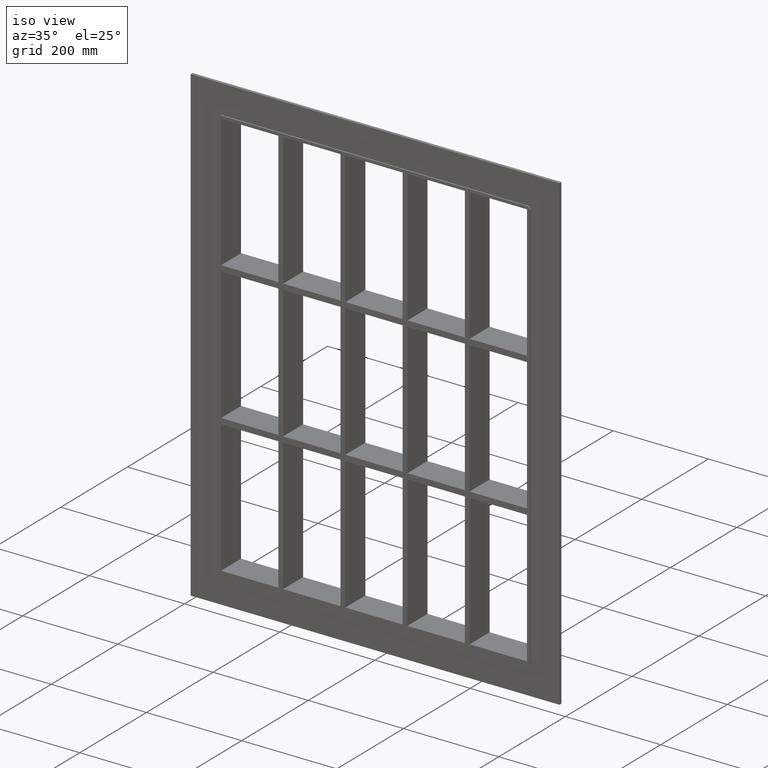
[diagram: clean part render]
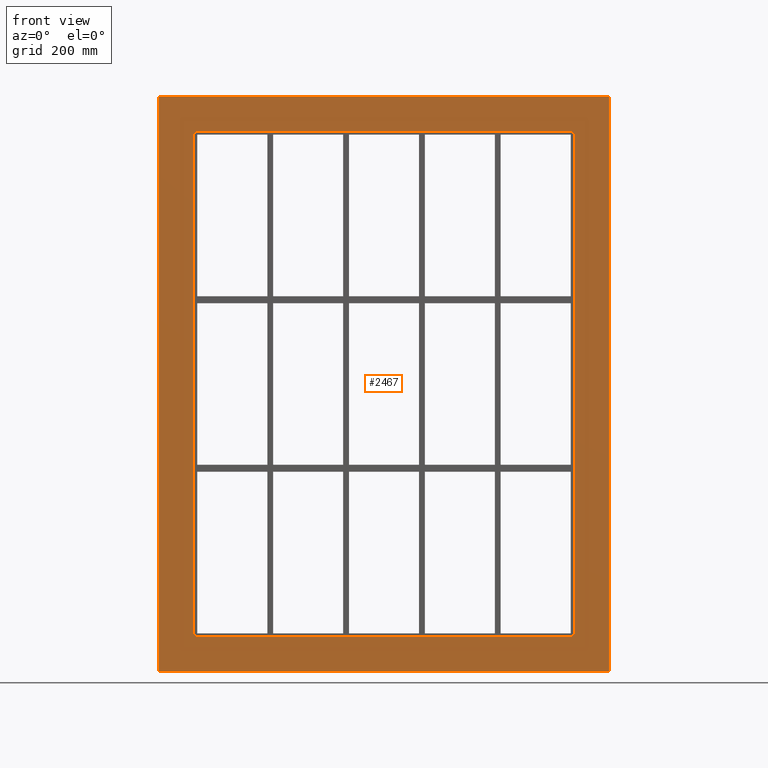
[diagram: tour spotlight — one face highlighted and labeled with its STEP entity id]
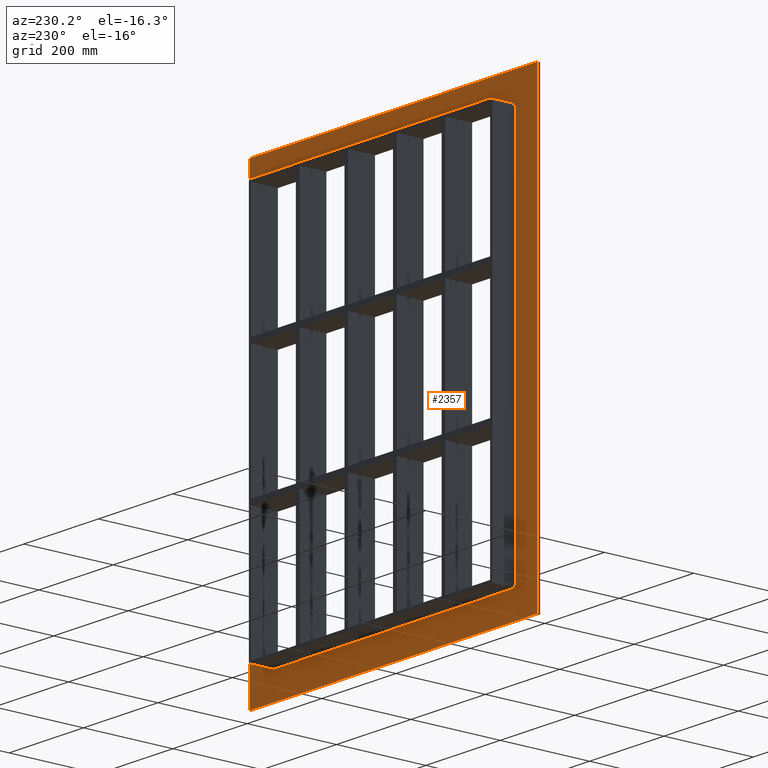
[diagram: tour spotlight — one face highlighted and labeled with its STEP entity id]
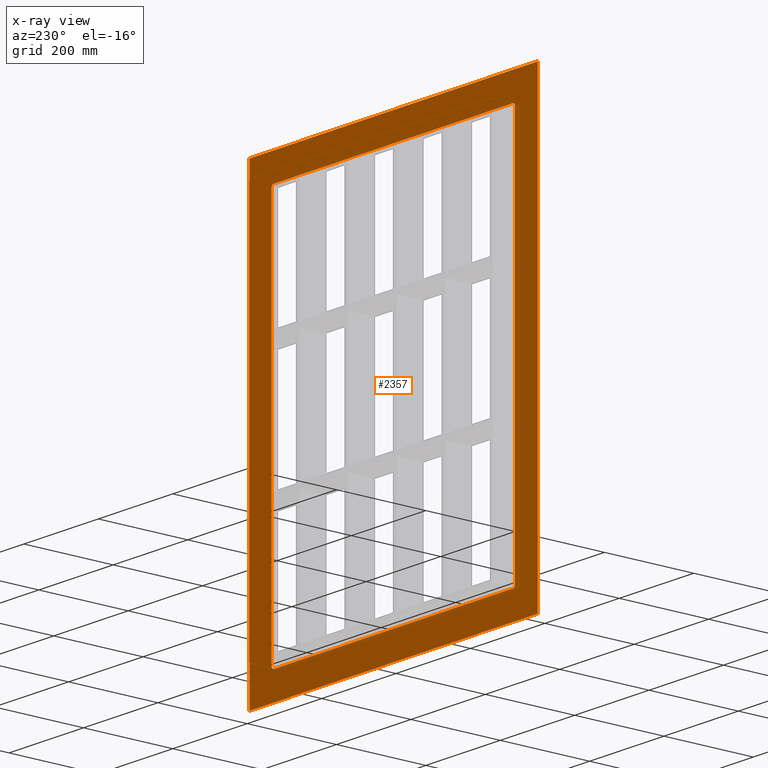
[diagram: x-ray of the same camera — body ghosted, this tour face saturated]
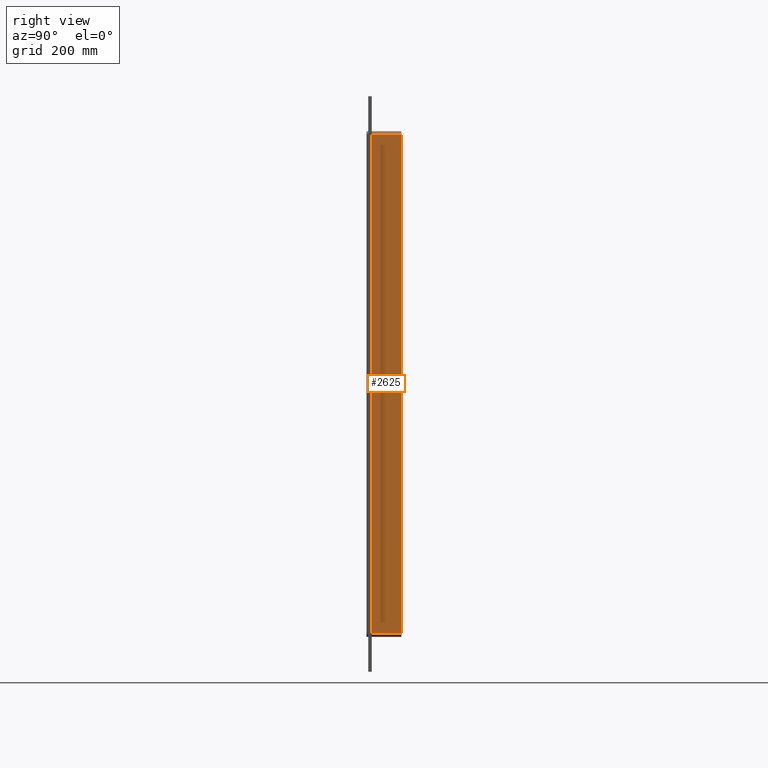
[diagram: tour spotlight — one face highlighted and labeled with its STEP entity id]
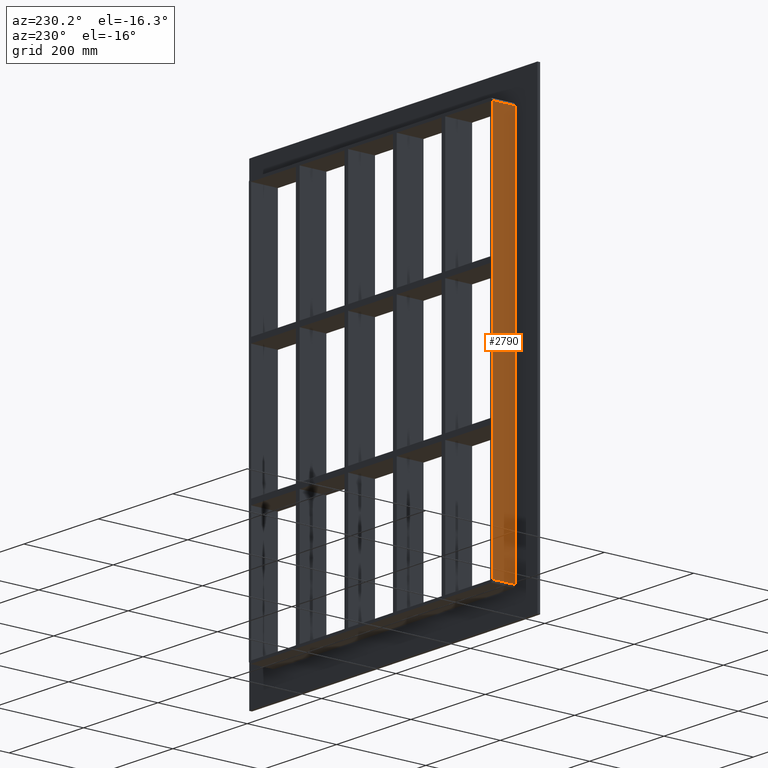
[diagram: tour spotlight — one face highlighted and labeled with its STEP entity id]
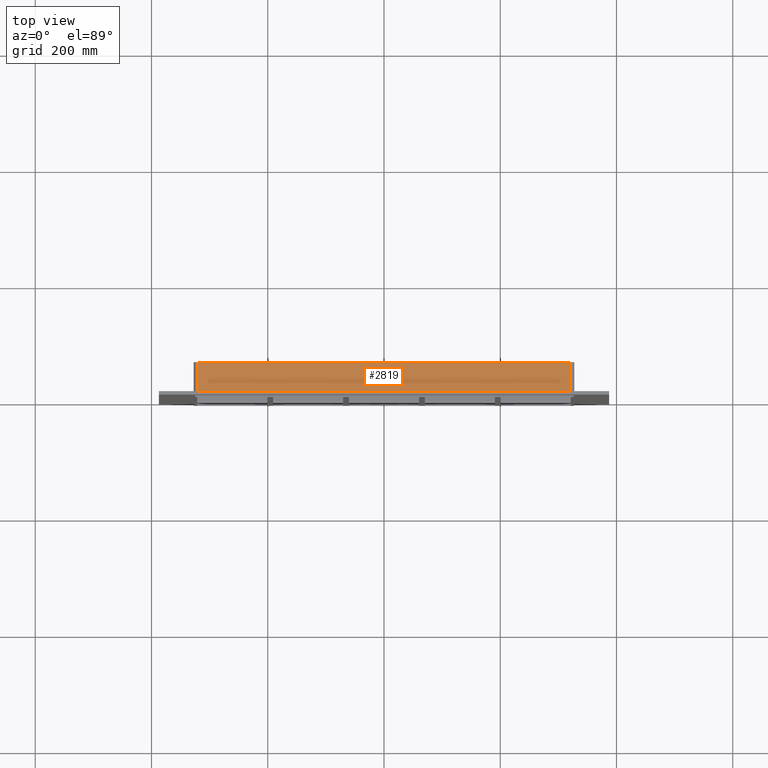
[diagram: tour spotlight — one face highlighted and labeled with its STEP entity id]
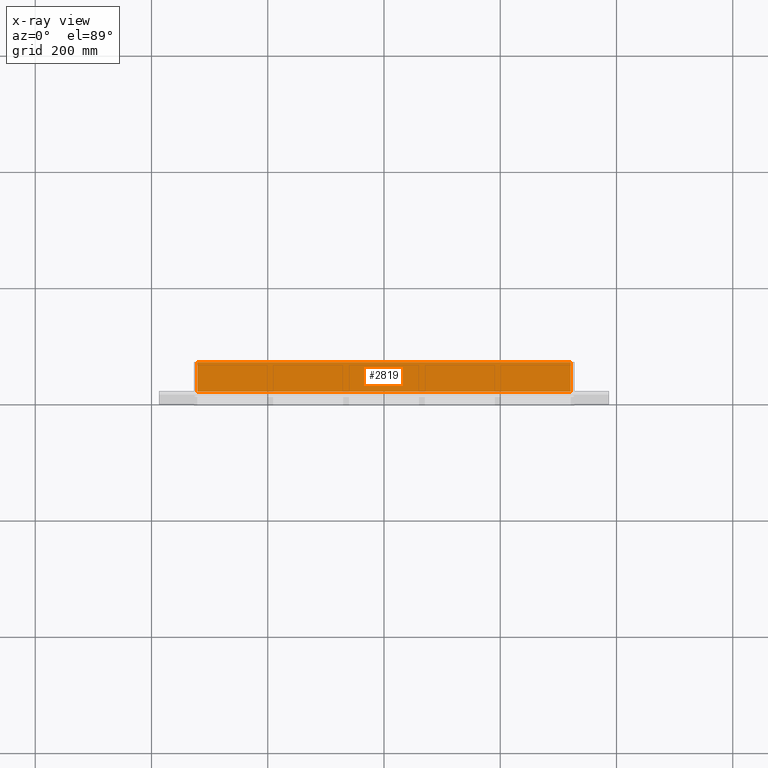
[diagram: x-ray of the same camera — body ghosted, this tour face saturated]
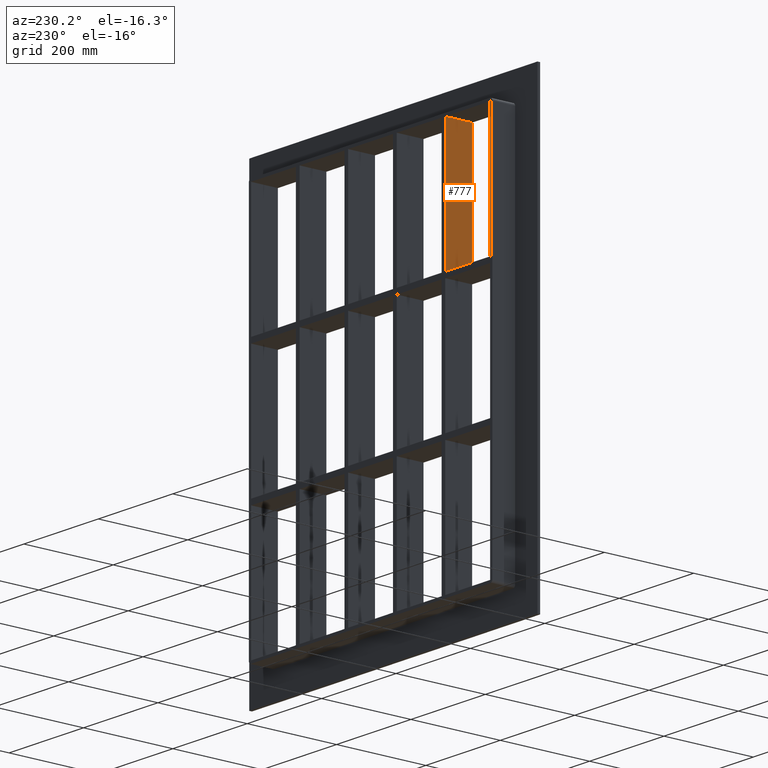
[diagram: tour spotlight — one face highlighted and labeled with its STEP entity id]
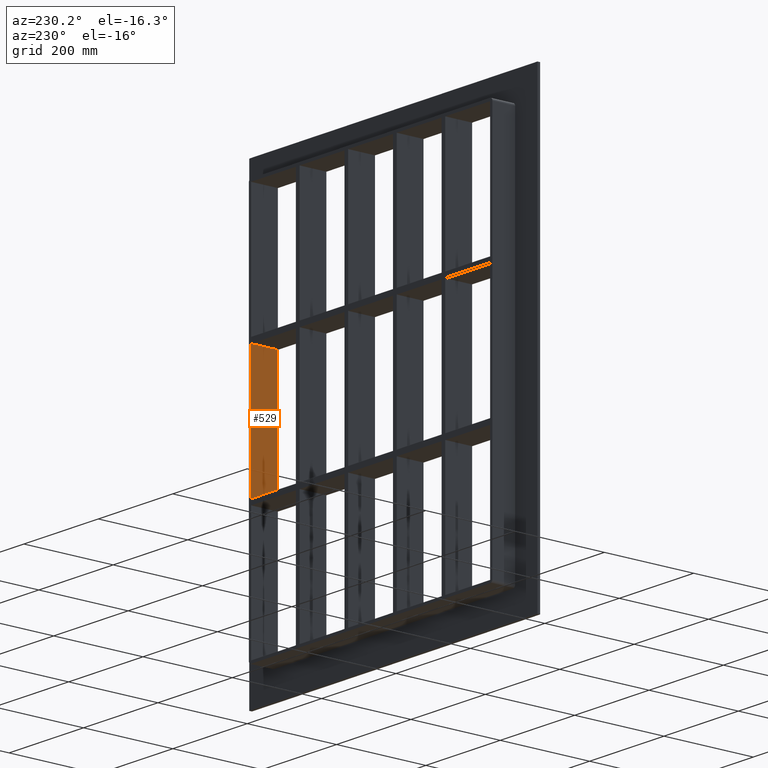
[diagram: tour spotlight — one face highlighted and labeled with its STEP entity id]
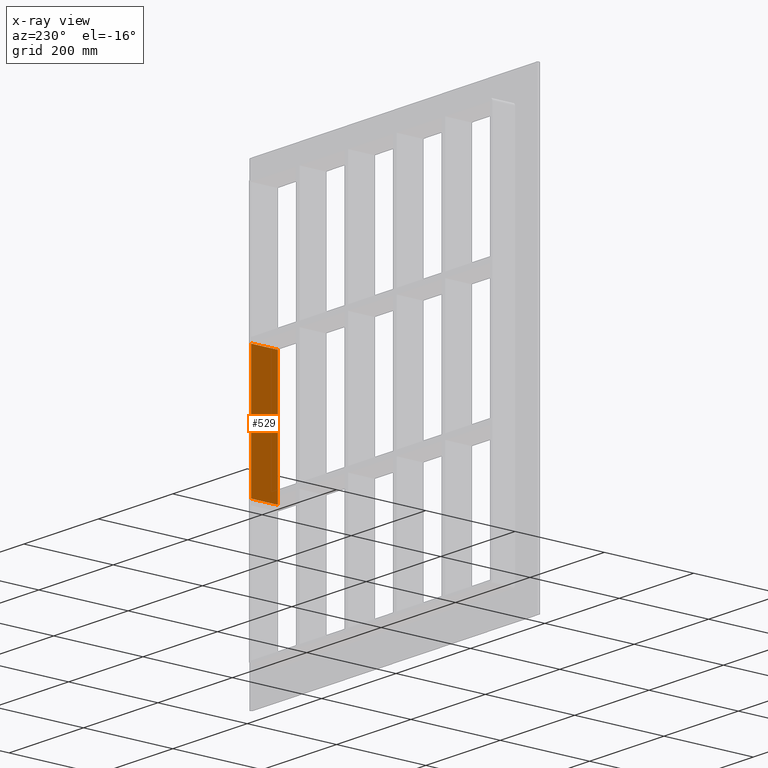
[diagram: x-ray of the same camera — body ghosted, this tour face saturated]
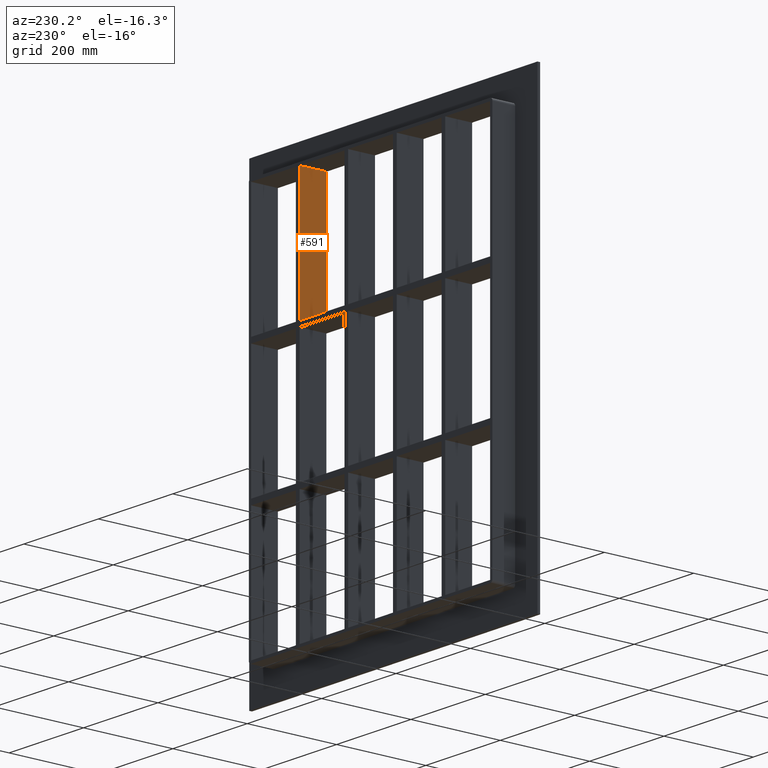
[diagram: tour spotlight — one face highlighted and labeled with its STEP entity id]
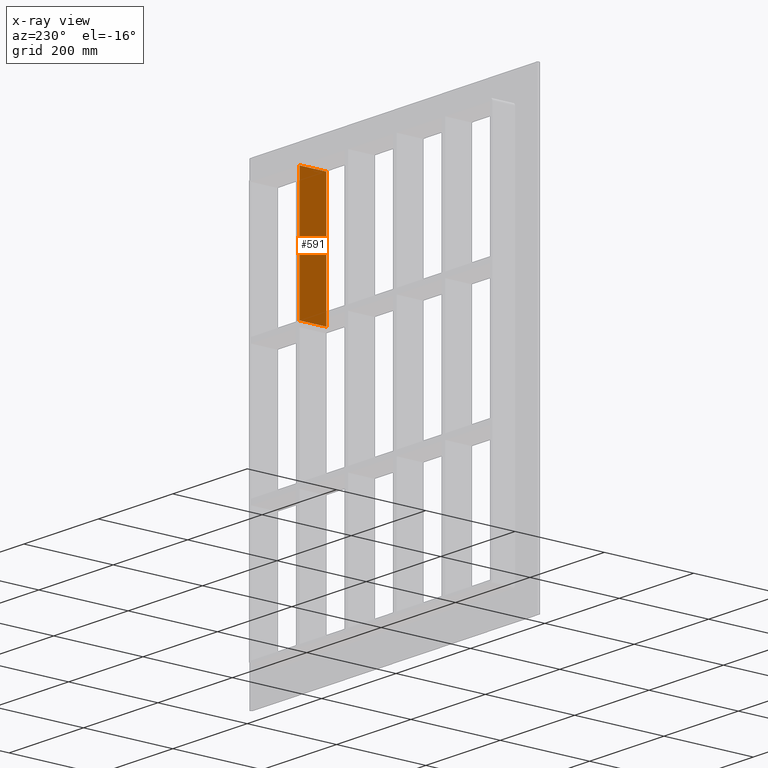
[diagram: x-ray of the same camera — body ghosted, this tour face saturated]
A machine part: a face-by-face anatomy tour. The part has 84 B-rep faces; the first image is the clean iso view, then the 8 largest visible faces are spotlighted one at a time (largest first), each with its STEP entity span.

Face 1 — front view, entity #2467. In plain terms, the highlighted planar face has unit normal (0, 1, 0).
Definition (entity closure, byte-faithful):
#2358=CARTESIAN_POINT('',(0.0,0.0,-3.865803E-014));
#2359=DIRECTION('',(0.0,1.0,0.0));
#2360=DIRECTION('',(0.0,0.0,1.0));
#2361=AXIS2_PLACEMENT_3D('',#2358,#2359,#2360);
#2362=PLANE('',#2361);
#2363=CARTESIAN_POINT('',(-387.25,0.0,495.00000000000006));
#2364=VERTEX_POINT('',#2363);
#2365=CARTESIAN_POINT('',(387.25,0.0,495.00000000000006));
#2366=VERTEX_POINT('',#2365);
#2367=CARTESIAN_POINT('',(-387.25,0.0,495.00000000000006));
#2368=DIRECTION('',(1.0,0.0,0.0));
#2369=VECTOR('',#2368,774.5);
#2370=LINE('',#2367,#2369);
#2371=EDGE_CURVE('',#2364,#2366,#2370,.T.);
#2372=ORIENTED_EDGE('',*,*,#2371,.F.);
#2373=CARTESIAN_POINT('',(-387.25,0.0,-495.00000000000011));
#2374=VERTEX_POINT('',#2373);
#2375=CARTESIAN_POINT('',(-387.25,0.0,-495.00000000000011));
#2376=DIRECTION('',(0.0,0.0,1.0));
#2377=VECTOR('',#2376,990.00000000000023);
#2378=LINE('',#2375,#2377);
#2379=EDGE_CURVE('',#2374,#2364,#2378,.T.);
#2380=ORIENTED_EDGE('',*,*,#2379,.F.);
#2381=CARTESIAN_POINT('',(387.25,0.0,-495.00000000000011));
#2382=VERTEX_POINT('',#2381);
#2383=CARTESIAN_POINT('',(387.25,0.0,-495.00000000000011));
#2384=DIRECTION('',(-1.0,0.0,0.0));
#2385=VECTOR('',#2384,774.5);
#2386=LINE('',#2383,#2385);
#2387=EDGE_CURVE('',#2382,#2374,#2386,.T.);
#2388=ORIENTED_EDGE('',*,*,#2387,.F.);
#2389=CARTESIAN_POINT('',(387.25,0.0,495.00000000000006));
#2390=DIRECTION('',(0.0,0.0,-1.0));
#2391=VECTOR('',#2390,990.00000000000023);
#2392=LINE('',#2389,#2391);
#2393=EDGE_CURVE('',#2366,#2382,#2392,.T.);
#2394=ORIENTED_EDGE('',*,*,#2393,.F.);
#2395=EDGE_LOOP('',(#2372,#2380,#2388,#2394));
#2396=FACE_OUTER_BOUND('',#2395,.T.);
#2397=CARTESIAN_POINT('',(-327.25000000000011,0.0,-429.00000000000006));
#2398=VERTEX_POINT('',#2397);
#2399=CARTESIAN_POINT('',(-321.25,0.0,-435.0));
#2400=VERTEX_POINT('',#2399);
#2401=CARTESIAN_POINT('',(-321.25,0.0,-429.00000000000006));
#2402=DIRECTION('',(0.0,-1.0,0.0));
#2403=DIRECTION('',(-0.707106781186556,0.0,-0.707106781186539));
#2404=AXIS2_PLACEMENT_3D('',#2401,#2402,#2403);
#2405=CIRCLE('',#2404,6.000000000000001);
#2406=EDGE_CURVE('',#2398,#2400,#2405,.T.);
#2407=ORIENTED_EDGE('',*,*,#2406,.F.);
#2408=CARTESIAN_POINT('',(-327.25000000000011,0.0,429.00000000000006));
#2409=VERTEX_POINT('',#2408);
#2410=CARTESIAN_POINT('',(-327.25000000000011,0.0,429.0));
#2411=DIRECTION('',(0.0,0.0,-1.0));
#2412=VECTOR('',#2411,858.0);
#2413=LINE('',#2410,#2412);
#2414=EDGE_CURVE('',#2409,#2398,#2413,.T.);
#2415=ORIENTED_EDGE('',*,*,#2414,.F.);
#2416=CARTESIAN_POINT('',(-321.25000000000011,0.0,435.00000000000011));
#2417=VERTEX_POINT('',#2416);
#2418=CARTESIAN_POINT('',(-321.25000000000011,0.0,429.00000000000006));
#2419=DIRECTION('',(0.0,-1.0,0.0));
#2420=DIRECTION('',(-0.707106781186539,0.0,0.707106781186556));
#2421=AXIS2_PLACEMENT_3D('',#2418,#2419,#2420);
#2422=CIRCLE('',#2421,6.000000000000001);
#2423=EDGE_CURVE('',#2417,#2409,#2422,.T.);
#2424=ORIENTED_EDGE('',*,*,#2423,.F.);
#2425=CARTESIAN_POINT('',(321.24999999999989,0.0,435.00000000000011));
#2426=VERTEX_POINT('',#2425);
#2427=CARTESIAN_POINT('',(321.24999999999983,0.0,435.00000000000011));
#2428=DIRECTION('',(-1.0,0.0,0.0));
#2429=VECTOR('',#2428,642.5);
#2430=LINE('',#2427,#2429);
#2431=EDGE_CURVE('',#2426,#2417,#2430,.T.);
#2432=ORIENTED_EDGE('',*,*,#2431,.F.);
#2433=CARTESIAN_POINT('',(327.24999999999994,0.0,429.00000000000011));
#2434=VERTEX_POINT('',#2433);
#2435=CARTESIAN_POINT('',(321.24999999999989,0.0,429.00000000000011));
#2436=DIRECTION('',(0.0,-1.0,0.0));
#2437=DIRECTION('',(0.707106781186547,0.0,0.707106781186547));
#2438=AXIS2_PLACEMENT_3D('',#2435,#2436,#2437);
#2439=CIRCLE('',#2438,6.0);
#2440=EDGE_CURVE('',#2434,#2426,#2439,.T.);
#2441=ORIENTED_EDGE('',*,*,#2440,.F.);
#2442=CARTESIAN_POINT('',(327.24999999999994,0.0,-428.99999999999989));
#2443=VERTEX_POINT('',#2442);
#2444=CARTESIAN_POINT('',(327.24999999999994,0.0,-428.99999999999989));
#2445=DIRECTION('',(0.0,0.0,1.0));
#2446=VECTOR('',#2445,858.0);
#2447=LINE('',#2444,#2446);
#2448=EDGE_CURVE('',#2443,#2434,#2447,.T.);
#2449=ORIENTED_EDGE('',*,*,#2448,.F.);
#2450=CARTESIAN_POINT('',(321.25,0.0,-435.0));
#2451=VERTEX_POINT('',#2450);
#2452=CARTESIAN_POINT('',(321.25,0.0,-428.99999999999989));
#2453=DIRECTION('',(0.0,-1.0,0.0));
#2454=DIRECTION('',(0.707106781186539,0.0,-0.707106781186556));
#2455=AXIS2_PLACEMENT_3D('',#2452,#2453,#2454);
#2456=CIRCLE('',#2455,6.000000000000001);
#2457=EDGE_CURVE('',#2451,#2443,#2456,.T.);
#2458=ORIENTED_EDGE('',*,*,#2457,.F.);
#2459=CARTESIAN_POINT('',(-321.25,0.0,-435.0));
#2460=DIRECTION('',(1.0,0.0,0.0));
#2461=VECTOR('',#2460,642.5);
#2462=LINE('',#2459,#2461);
#2463=EDGE_CURVE('',#2400,#2451,#2462,.T.);
#2464=ORIENTED_EDGE('',*,*,#2463,.F.);
#2465=EDGE_LOOP('',(#2407,#2415,#2424,#2432,#2441,#2449,#2458,#2464));
#2466=FACE_BOUND('',#2465,.T.);
#2467=ADVANCED_FACE('',(#2396,#2466),#2362,.F.);

Face 2 — auxiliary view, entity #2357. An x-ray twin of the same camera follows (body ghosted, this face saturated) — the face is partly hidden behind the body. In plain terms, the highlighted planar face has unit normal (0, 1, 0).
Definition (entity closure, byte-faithful):
#2248=CARTESIAN_POINT('',(0.0,6.000000000000001,-3.865803E-014));
#2249=DIRECTION('',(0.0,1.0,0.0));
#2250=DIRECTION('',(0.0,0.0,1.0));
#2251=AXIS2_PLACEMENT_3D('',#2248,#2249,#2250);
#2252=PLANE('',#2251);
#2253=CARTESIAN_POINT('',(-387.25,6.000000000000001,495.00000000000006));
#2254=VERTEX_POINT('',#2253);
#2255=CARTESIAN_POINT('',(387.25,6.000000000000001,495.00000000000006));
#2256=VERTEX_POINT('',#2255);
#2257=CARTESIAN_POINT('',(-387.25,6.000000000000001,495.00000000000006));
#2258=DIRECTION('',(1.0,0.0,0.0));
#2259=VECTOR('',#2258,774.5);
#2260=LINE('',#2257,#2259);
#2261=EDGE_CURVE('',#2254,#2256,#2260,.T.);
#2262=ORIENTED_EDGE('',*,*,#2261,.T.);
#2263=CARTESIAN_POINT('',(387.25,6.000000000000001,-495.00000000000023));
#2264=VERTEX_POINT('',#2263);
#2265=CARTESIAN_POINT('',(387.25,6.000000000000001,495.00000000000006));
#2266=DIRECTION('',(0.0,0.0,-1.0));
#2267=VECTOR('',#2266,990.00000000000023);
#2268=LINE('',#2265,#2267);
#2269=EDGE_CURVE('',#2256,#2264,#2268,.T.);
#2270=ORIENTED_EDGE('',*,*,#2269,.T.);
#2271=CARTESIAN_POINT('',(-387.25,6.000000000000001,-495.00000000000023));
#2272=VERTEX_POINT('',#2271);
#2273=CARTESIAN_POINT('',(387.25,6.000000000000001,-495.00000000000011));
#2274=DIRECTION('',(-1.0,0.0,0.0));
#2275=VECTOR('',#2274,774.5);
#2276=LINE('',#2273,#2275);
#2277=EDGE_CURVE('',#2264,#2272,#2276,.T.);
#2278=ORIENTED_EDGE('',*,*,#2277,.T.);
#2279=CARTESIAN_POINT('',(-387.25,6.000000000000001,-495.00000000000011));
#2280=DIRECTION('',(0.0,0.0,1.0));
#2281=VECTOR('',#2280,990.00000000000023);
#2282=LINE('',#2279,#2281);
#2283=EDGE_CURVE('',#2272,#2254,#2282,.T.);
#2284=ORIENTED_EDGE('',*,*,#2283,.T.);
#2285=EDGE_LOOP('',(#2262,#2270,#2278,#2284));
#2286=FACE_OUTER_BOUND('',#2285,.T.);
#2287=CARTESIAN_POINT('',(-321.25,6.000000000000001,-435.0));
#2288=VERTEX_POINT('',#2287);
#2289=CARTESIAN_POINT('',(-327.25000000000011,6.000000000000001,-429.00000000000006));
#2290=VERTEX_POINT('',#2289);
#2291=CARTESIAN_POINT('',(-321.25,6.000000000000001,-429.00000000000006));
#2292=DIRECTION('',(0.0,1.0,0.0));
#2293=DIRECTION('',(-0.707106781186556,0.0,-0.707106781186539));
#2294=AXIS2_PLACEMENT_3D('',#2291,#2292,#2293);
#2295=CIRCLE('',#2294,6.000000000000001);
#2296=EDGE_CURVE('',#2288,#2290,#2295,.T.);
#2297=ORIENTED_EDGE('',*,*,#2296,.F.);
#2298=CARTESIAN_POINT('',(321.25,6.000000000000001,-435.0));
#2299=VERTEX_POINT('',#2298);
#2300=CARTESIAN_POINT('',(321.25,6.000000000000001,-435.0));
#2301=DIRECTION('',(-1.0,0.0,0.0));
#2302=VECTOR('',#2301,642.5);
#2303=LINE('',#2300,#2302);
#2304=EDGE_CURVE('',#2299,#2288,#2303,.T.);
#2305=ORIENTED_EDGE('',*,*,#2304,.F.);
#2306=CARTESIAN_POINT('',(327.24999999999994,6.000000000000001,-428.99999999999989));
#2307=VERTEX_POINT('',#2306);
#2308=CARTESIAN_POINT('',(321.25,6.000000000000001,-428.99999999999989));
#2309=DIRECTION('',(0.0,1.0,0.0));
#2310=DIRECTION('',(0.707106781186539,0.0,-0.707106781186556));
#2311=AXIS2_PLACEMENT_3D('',#2308,#2309,#2310);
#2312=CIRCLE('',#2311,6.000000000000001);
#2313=EDGE_CURVE('',#2307,#2299,#2312,.T.);
#2314=ORIENTED_EDGE('',*,*,#2313,.F.);
#2315=CARTESIAN_POINT('',(327.24999999999994,6.000000000000001,429.00000000000011));
#2316=VERTEX_POINT('',#2315);
#2317=CARTESIAN_POINT('',(327.24999999999994,6.000000000000001,429.00000000000011));
#2318=DIRECTION('',(0.0,0.0,-1.0));
#2319=VECTOR('',#2318,858.0);
#2320=LINE('',#2317,#2319);
#2321=EDGE_CURVE('',#2316,#2307,#2320,.T.);
#2322=ORIENTED_EDGE('',*,*,#2321,.F.);
#2323=CARTESIAN_POINT('',(321.24999999999989,6.000000000000001,435.00000000000011));
#2324=VERTEX_POINT('',#2323);
#2325=CARTESIAN_POINT('',(321.24999999999989,6.000000000000001,429.00000000000011));
#2326=DIRECTION('',(0.0,1.0,0.0));
#2327=DIRECTION('',(0.707106781186547,0.0,0.707106781186547));
#2328=AXIS2_PLACEMENT_3D('',#2325,#2326,#2327);
#2329=CIRCLE('',#2328,6.0);
#2330=EDGE_CURVE('',#2324,#2316,#2329,.T.);
#2331=ORIENTED_EDGE('',*,*,#2330,.F.);
#2332=CARTESIAN_POINT('',(-321.25000000000011,6.000000000000001,435.00000000000011));
#2333=VERTEX_POINT('',#2332);
#2334=CARTESIAN_POINT('',(-321.25000000000017,6.000000000000001,435.00000000000011));
#2335=DIRECTION('',(1.0,0.0,0.0));
#2336=VECTOR('',#2335,642.5);
#2337=LINE('',#2334,#2336);
#2338=EDGE_CURVE('',#2333,#2324,#2337,.T.);
#2339=ORIENTED_EDGE('',*,*,#2338,.F.);
#2340=CARTESIAN_POINT('',(-327.25000000000011,6.000000000000001,429.00000000000006));
#2341=VERTEX_POINT('',#2340);
#2342=CARTESIAN_POINT('',(-321.25000000000011,6.000000000000001,429.00000000000006));
#2343=DIRECTION('',(0.0,1.0,0.0));
#2344=DIRECTION('',(-0.707106781186539,0.0,0.707106781186556));
#2345=AXIS2_PLACEMENT_3D('',#2342,#2343,#2344);
#2346=CIRCLE('',#2345,6.000000000000001);
#2347=EDGE_CURVE('',#2341,#2333,#2346,.T.);
#2348=ORIENTED_EDGE('',*,*,#2347,.F.);
#2349=CARTESIAN_POINT('',(-327.25000000000011,6.000000000000001,-429.00000000000006));
#2350=DIRECTION('',(0.0,0.0,1.0));
#2351=VECTOR('',#2350,858.0);
#2352=LINE('',#2349,#2351);
#2353=EDGE_CURVE('',#2290,#2341,#2352,.T.);
#2354=ORIENTED_EDGE('',*,*,#2353,.F.);
#2355=EDGE_LOOP('',(#2297,#2305,#2314,#2322,#2331,#2339,#2348,#2354));
#2356=FACE_BOUND('',#2355,.T.);
#2357=ADVANCED_FACE('',(#2286,#2356),#2252,.T.);

Face 3 — right view, entity #2625. In plain terms, the highlighted planar face has unit normal (1, 0, 0).
Definition (entity closure, byte-faithful):
#847=CARTESIAN_POINT('',(327.24999999999994,57.0,-428.99999999999989));
#848=VERTEX_POINT('',#847);
#898=CARTESIAN_POINT('',(327.24999999999994,57.0,429.00000000000011));
#899=VERTEX_POINT('',#898);
#907=CARTESIAN_POINT('',(327.24999999999994,57.0,429.00000000000011));
#908=DIRECTION('',(0.0,0.0,-1.0));
#909=VECTOR('',#908,858.0);
#910=LINE('',#907,#909);
#911=EDGE_CURVE('',#899,#848,#910,.T.);
#2306=CARTESIAN_POINT('',(327.24999999999994,6.000000000000001,-428.99999999999989));
#2307=VERTEX_POINT('',#2306);
#2315=CARTESIAN_POINT('',(327.24999999999994,6.000000000000001,429.00000000000011));
#2316=VERTEX_POINT('',#2315);
#2317=CARTESIAN_POINT('',(327.24999999999994,6.000000000000001,429.00000000000011));
#2318=DIRECTION('',(0.0,0.0,-1.0));
#2319=VECTOR('',#2318,858.0);
#2320=LINE('',#2317,#2319);
#2321=EDGE_CURVE('',#2316,#2307,#2320,.T.);
#2576=CARTESIAN_POINT('',(327.24999999999994,6.000000000000001,429.00000000000011));
#2577=DIRECTION('',(0.0,1.0,0.0));
#2578=VECTOR('',#2577,51.0);
#2579=LINE('',#2576,#2578);
#2580=EDGE_CURVE('',#2316,#899,#2579,.T.);
#2609=CARTESIAN_POINT('',(327.24999999999994,0.0,435.00000000000011));
#2610=DIRECTION('',(1.0,0.0,0.0));
#2611=DIRECTION('',(0.0,0.0,-1.0));
#2612=AXIS2_PLACEMENT_3D('',#2609,#2610,#2611);
#2613=PLANE('',#2612);
#2614=ORIENTED_EDGE('',*,*,#2321,.T.);
#2615=CARTESIAN_POINT('',(327.24999999999994,57.0,-428.99999999999989));
#2616=DIRECTION('',(0.0,-1.0,0.0));
#2617=VECTOR('',#2616,51.0);
#2618=LINE('',#2615,#2617);
#2619=EDGE_CURVE('',#848,#2307,#2618,.T.);
#2620=ORIENTED_EDGE('',*,*,#2619,.F.);
#2621=ORIENTED_EDGE('',*,*,#911,.F.);
#2622=ORIENTED_EDGE('',*,*,#2580,.F.);
#2623=EDGE_LOOP('',(#2614,#2620,#2621,#2622));
#2624=FACE_OUTER_BOUND('',#2623,.T.);
#2625=ADVANCED_FACE('',(#2624),#2613,.T.);

Face 4 — auxiliary view, entity #2790. In plain terms, the highlighted planar face has unit normal (-1, 0, 0).
Definition (entity closure, byte-faithful):
#864=CARTESIAN_POINT('',(-327.25000000000011,57.0,-429.00000000000006));
#865=VERTEX_POINT('',#864);
#873=CARTESIAN_POINT('',(-327.25000000000011,57.0,429.00000000000006));
#874=VERTEX_POINT('',#873);
#875=CARTESIAN_POINT('',(-327.25000000000011,57.0,-429.00000000000006));
#876=DIRECTION('',(0.0,0.0,1.0));
#877=VECTOR('',#876,858.0);
#878=LINE('',#875,#877);
#879=EDGE_CURVE('',#865,#874,#878,.T.);
#2289=CARTESIAN_POINT('',(-327.25000000000011,6.000000000000001,-429.00000000000006));
#2290=VERTEX_POINT('',#2289);
#2340=CARTESIAN_POINT('',(-327.25000000000011,6.000000000000001,429.00000000000006));
#2341=VERTEX_POINT('',#2340);
#2349=CARTESIAN_POINT('',(-327.25000000000011,6.000000000000001,-429.00000000000006));
#2350=DIRECTION('',(0.0,0.0,1.0));
#2351=VECTOR('',#2350,858.0);
#2352=LINE('',#2349,#2351);
#2353=EDGE_CURVE('',#2290,#2341,#2352,.T.);
#2763=CARTESIAN_POINT('',(-327.25000000000011,6.000000000000001,-429.00000000000006));
#2764=DIRECTION('',(0.0,1.0,0.0));
#2765=VECTOR('',#2764,51.0);
#2766=LINE('',#2763,#2765);
#2767=EDGE_CURVE('',#2290,#865,#2766,.T.);
#2774=CARTESIAN_POINT('',(-327.25000000000011,0.0,-435.0));
#2775=DIRECTION('',(-1.0,0.0,0.0));
#2776=DIRECTION('',(0.0,0.0,1.0));
#2777=AXIS2_PLACEMENT_3D('',#2774,#2775,#2776);
#2778=PLANE('',#2777);
#2779=ORIENTED_EDGE('',*,*,#2353,.T.);
#2780=CARTESIAN_POINT('',(-327.25000000000011,57.0,429.00000000000006));
#2781=DIRECTION('',(0.0,-1.0,0.0));
#2782=VECTOR('',#2781,51.0);
#2783=LINE('',#2780,#2782);
#2784=EDGE_CURVE('',#874,#2341,#2783,.T.);
#2785=ORIENTED_EDGE('',*,*,#2784,.F.);
#2786=ORIENTED_EDGE('',*,*,#879,.F.);
#2787=ORIENTED_EDGE('',*,*,#2767,.F.);
#2788=EDGE_LOOP('',(#2779,#2785,#2786,#2787));
#2789=FACE_OUTER_BOUND('',#2788,.T.);
#2790=ADVANCED_FACE('',(#2789),#2778,.T.);

Face 5 — top view, entity #2819. An x-ray twin of the same camera follows (body ghosted, this face saturated) — the face is partly hidden behind the body. In plain terms, the highlighted planar face has unit normal (0, 0, 1).
Definition (entity closure, byte-faithful):
#881=CARTESIAN_POINT('',(-321.25000000000011,57.0,435.00000000000011));
#882=VERTEX_POINT('',#881);
#890=CARTESIAN_POINT('',(321.24999999999989,57.0,435.00000000000011));
#891=VERTEX_POINT('',#890);
#892=CARTESIAN_POINT('',(-321.25000000000017,57.0,435.00000000000011));
#893=DIRECTION('',(1.0,0.0,0.0));
#894=VECTOR('',#893,642.5);
#895=LINE('',#892,#894);
#896=EDGE_CURVE('',#882,#891,#895,.T.);
#2323=CARTESIAN_POINT('',(321.24999999999989,6.000000000000001,435.00000000000011));
#2324=VERTEX_POINT('',#2323);
#2332=CARTESIAN_POINT('',(-321.25000000000011,6.000000000000001,435.00000000000011));
#2333=VERTEX_POINT('',#2332);
#2334=CARTESIAN_POINT('',(-321.25000000000017,6.000000000000001,435.00000000000011));
#2335=DIRECTION('',(1.0,0.0,0.0));
#2336=VECTOR('',#2335,642.5);
#2337=LINE('',#2334,#2336);
#2338=EDGE_CURVE('',#2333,#2324,#2337,.T.);
#2583=CARTESIAN_POINT('',(321.24999999999989,57.0,435.00000000000011));
#2584=DIRECTION('',(0.0,-1.0,0.0));
#2585=VECTOR('',#2584,51.0);
#2586=LINE('',#2583,#2585);
#2587=EDGE_CURVE('',#891,#2324,#2586,.T.);
#2797=CARTESIAN_POINT('',(-321.25000000000011,6.000000000000001,435.00000000000011));
#2798=DIRECTION('',(0.0,1.0,0.0));
#2799=VECTOR('',#2798,51.0);
#2800=LINE('',#2797,#2799);
#2801=EDGE_CURVE('',#2333,#882,#2800,.T.);
#2808=CARTESIAN_POINT('',(-327.25000000000011,0.0,435.00000000000011));
#2809=DIRECTION('',(0.0,0.0,1.0));
#2810=DIRECTION('',(1.0,0.0,0.0));
#2811=AXIS2_PLACEMENT_3D('',#2808,#2809,#2810);
#2812=PLANE('',#2811);
#2813=ORIENTED_EDGE('',*,*,#2338,.T.);
#2814=ORIENTED_EDGE('',*,*,#2587,.F.);
#2815=ORIENTED_EDGE('',*,*,#896,.F.);
#2816=ORIENTED_EDGE('',*,*,#2801,.F.);
#2817=EDGE_LOOP('',(#2813,#2814,#2815,#2816));
#2818=FACE_OUTER_BOUND('',#2817,.T.);
#2819=ADVANCED_FACE('',(#2818),#2812,.T.);

Face 6 — auxiliary view, entity #777. In plain terms, the highlighted planar face has unit normal (-1, 0, 0).
Definition (entity closure, byte-faithful):
#273=CARTESIAN_POINT('',(-200.75000000000128,57.0,150.99999999999994));
#274=VERTEX_POINT('',#273);
#275=CARTESIAN_POINT('',(-200.75000000000128,-3.0,150.99999999999994));
#276=VERTEX_POINT('',#275);
#277=CARTESIAN_POINT('',(-200.75000000000128,57.0,150.99999999999994));
#278=DIRECTION('',(0.0,-1.0,0.0));
#279=VECTOR('',#278,60.0);
#280=LINE('',#277,#279);
#281=EDGE_CURVE('',#274,#276,#280,.T.);
#747=CARTESIAN_POINT('',(-200.75000000000125,-3.0,-429.00000000000006));
#748=DIRECTION('',(-1.0,0.0,0.0));
#749=DIRECTION('',(0.0,0.0,1.0));
#750=AXIS2_PLACEMENT_3D('',#747,#748,#749);
#751=PLANE('',#750);
#752=ORIENTED_EDGE('',*,*,#281,.T.);
#753=CARTESIAN_POINT('',(-200.75000000000131,-3.0,429.00000000000006));
#754=VERTEX_POINT('',#753);
#755=CARTESIAN_POINT('',(-200.75000000000131,-3.0,150.99999999999994));
#756=DIRECTION('',(0.0,0.0,1.0));
#757=VECTOR('',#756,278.00000000000011);
#758=LINE('',#755,#757);
#759=EDGE_CURVE('',#276,#754,#758,.T.);
#760=ORIENTED_EDGE('',*,*,#759,.T.);
#761=CARTESIAN_POINT('',(-200.75000000000131,57.0,429.00000000000006));
#762=VERTEX_POINT('',#761);
#763=CARTESIAN_POINT('',(-200.75000000000131,57.000000000000007,429.00000000000006));
#764=DIRECTION('',(0.0,-1.0,0.0));
#765=VECTOR('',#764,60.000000000000007);
#766=LINE('',#763,#765);
#767=EDGE_CURVE('',#762,#754,#766,.T.);
#768=ORIENTED_EDGE('',*,*,#767,.F.);
#769=CARTESIAN_POINT('',(-200.75000000000131,57.0,150.99999999999994));
#770=DIRECTION('',(0.0,0.0,1.0));
#771=VECTOR('',#770,278.00000000000011);
#772=LINE('',#769,#771);
#773=EDGE_CURVE('',#274,#762,#772,.T.);
#774=ORIENTED_EDGE('',*,*,#773,.F.);
#775=EDGE_LOOP('',(#752,#760,#768,#774));
#776=FACE_OUTER_BOUND('',#775,.T.);
#777=ADVANCED_FACE('',(#776),#751,.T.);

Face 7 — auxiliary view, entity #529. An x-ray twin of the same camera follows (body ghosted, this face saturated) — the face is partly hidden behind the body. In plain terms, the highlighted planar face has unit normal (1, 0, 0).
Definition (entity closure, byte-faithful):
#203=CARTESIAN_POINT('',(321.25,57.0,138.99999999999073));
#204=VERTEX_POINT('',#203);
#211=CARTESIAN_POINT('',(321.25,-3.0,138.99999999999073));
#212=VERTEX_POINT('',#211);
#213=CARTESIAN_POINT('',(321.25000000000006,-3.0,138.99999999999073));
#214=DIRECTION('',(0.0,1.0,0.0));
#215=VECTOR('',#214,60.000000000000007);
#216=LINE('',#213,#215);
#217=EDGE_CURVE('',#212,#204,#216,.T.);
#499=CARTESIAN_POINT('',(321.25000000000006,0.0,429.00000000000006));
#500=DIRECTION('',(1.0,0.0,0.0));
#501=DIRECTION('',(0.0,0.0,-1.0));
#502=AXIS2_PLACEMENT_3D('',#499,#500,#501);
#503=PLANE('',#502);
#504=ORIENTED_EDGE('',*,*,#217,.T.);
#505=CARTESIAN_POINT('',(321.25,57.0,-139.00000000000006));
#506=VERTEX_POINT('',#505);
#507=CARTESIAN_POINT('',(321.25000000000006,57.0,-139.00000000000006));
#508=DIRECTION('',(0.0,0.0,1.0));
#509=VECTOR('',#508,277.99999999999079);
#510=LINE('',#507,#509);
#511=EDGE_CURVE('',#506,#204,#510,.T.);
#512=ORIENTED_EDGE('',*,*,#511,.F.);
#513=CARTESIAN_POINT('',(321.25,-3.0,-139.00000000000006));
#514=VERTEX_POINT('',#513);
#515=CARTESIAN_POINT('',(321.25000000000011,57.000000000000007,-139.00000000000006));
#516=DIRECTION('',(0.0,-1.0,0.0));
#517=VECTOR('',#516,60.000000000000007);
#518=LINE('',#515,#517);
#519=EDGE_CURVE('',#506,#514,#518,.T.);
#520=ORIENTED_EDGE('',*,*,#519,.T.);
#521=CARTESIAN_POINT('',(321.25000000000006,-3.0,138.99999999999073));
#522=DIRECTION('',(0.0,0.0,-1.0));
#523=VECTOR('',#522,277.99999999999079);
#524=LINE('',#521,#523);
#525=EDGE_CURVE('',#212,#514,#524,.T.);
#526=ORIENTED_EDGE('',*,*,#525,.F.);
#527=EDGE_LOOP('',(#504,#512,#520,#526));
#528=FACE_OUTER_BOUND('',#527,.T.);
#529=ADVANCED_FACE('',(#528),#503,.F.);

Face 8 — auxiliary view, entity #591. An x-ray twin of the same camera follows (body ghosted, this face saturated) — the face is partly hidden behind the body. In plain terms, the highlighted planar face has unit normal (-1, 0, 0).
Definition (entity closure, byte-faithful):
#433=CARTESIAN_POINT('',(190.74999999999875,57.0,150.99999999999994));
#434=VERTEX_POINT('',#433);
#435=CARTESIAN_POINT('',(190.74999999999875,-3.0,150.99999999999994));
#436=VERTEX_POINT('',#435);
#437=CARTESIAN_POINT('',(190.74999999999878,57.0,150.99999999999994));
#438=DIRECTION('',(0.0,-1.0,0.0));
#439=VECTOR('',#438,60.0);
#440=LINE('',#437,#439);
#441=EDGE_CURVE('',#434,#436,#440,.T.);
#561=CARTESIAN_POINT('',(190.74999999999881,-3.0,-429.00000000000006));
#562=DIRECTION('',(-1.0,0.0,0.0));
#563=DIRECTION('',(0.0,0.0,1.0));
#564=AXIS2_PLACEMENT_3D('',#561,#562,#563);
#565=PLANE('',#564);
#566=ORIENTED_EDGE('',*,*,#441,.T.);
#567=CARTESIAN_POINT('',(190.74999999999875,-3.0,429.00000000000006));
#568=VERTEX_POINT('',#567);
#569=CARTESIAN_POINT('',(190.74999999999875,-3.0,150.99999999999994));
#570=DIRECTION('',(0.0,0.0,1.0));
#571=VECTOR('',#570,278.00000000000011);
#572=LINE('',#569,#571);
#573=EDGE_CURVE('',#436,#568,#572,.T.);
#574=ORIENTED_EDGE('',*,*,#573,.T.);
#575=CARTESIAN_POINT('',(190.74999999999875,57.0,429.00000000000006));
#576=VERTEX_POINT('',#575);
#577=CARTESIAN_POINT('',(190.74999999999875,57.000000000000007,429.00000000000006));
#578=DIRECTION('',(0.0,-1.0,0.0));
#579=VECTOR('',#578,60.000000000000007);
#580=LINE('',#577,#579);
#581=EDGE_CURVE('',#576,#568,#580,.T.);
#582=ORIENTED_EDGE('',*,*,#581,.F.);
#583=CARTESIAN_POINT('',(190.74999999999875,57.0,150.99999999999994));
#584=DIRECTION('',(0.0,0.0,1.0));
#585=VECTOR('',#584,278.00000000000011);
#586=LINE('',#583,#585);
#587=EDGE_CURVE('',#434,#576,#586,.T.);
#588=ORIENTED_EDGE('',*,*,#587,.F.);
#589=EDGE_LOOP('',(#566,#574,#582,#588));
#590=FACE_OUTER_BOUND('',#589,.T.);
#591=ADVANCED_FACE('',(#590),#565,.T.);